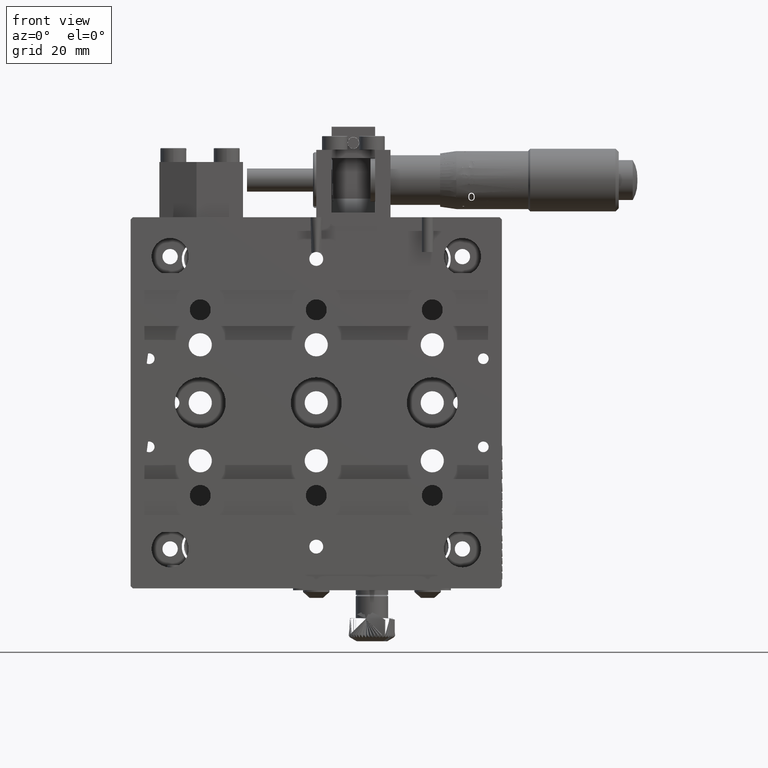
[diagram: clean part render]
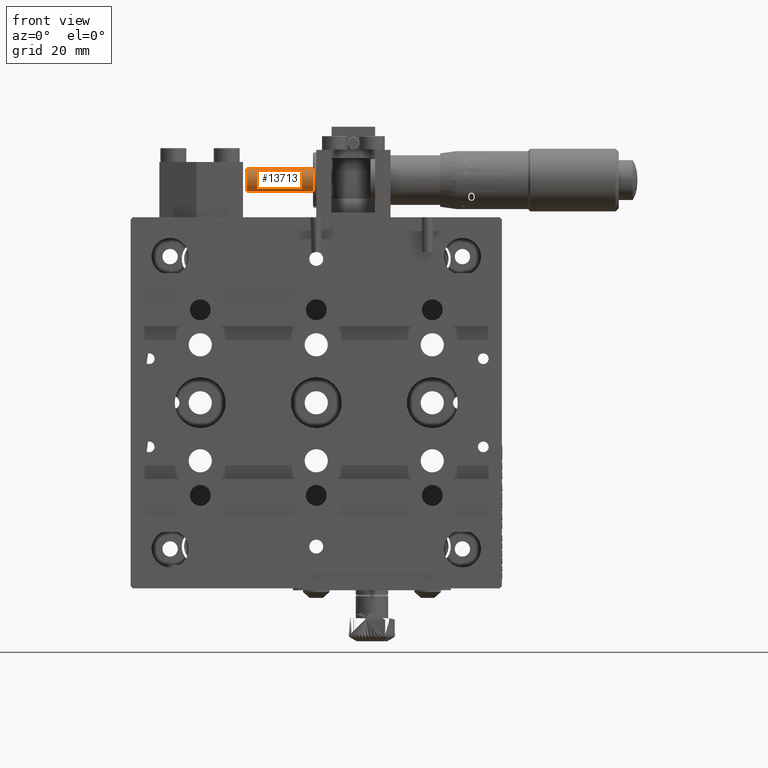
[diagram: same view with one face highlighted and labeled with its STEP entity id]
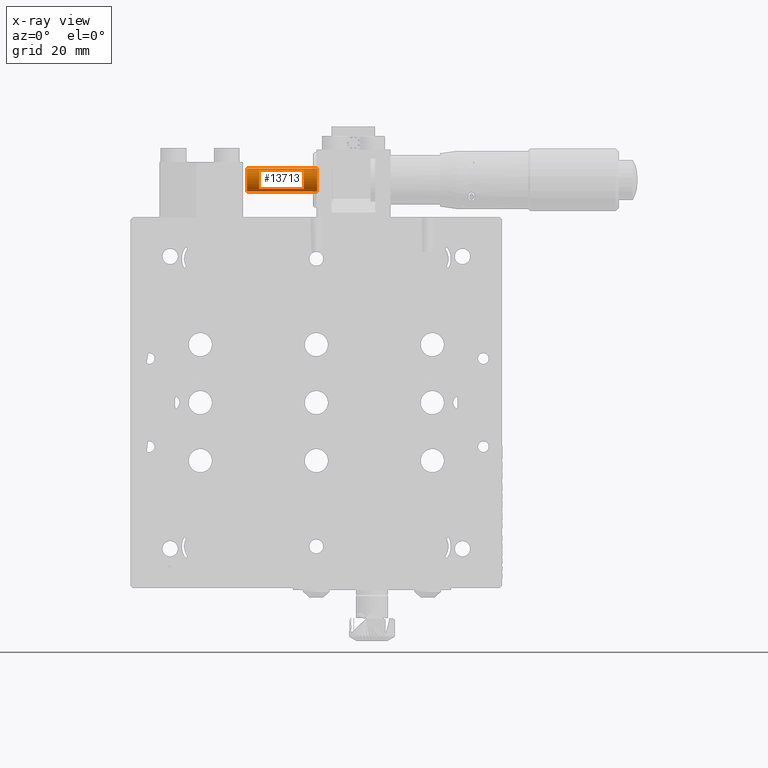
[diagram: x-ray of the same camera — body ghosted, the highlighted face saturated]
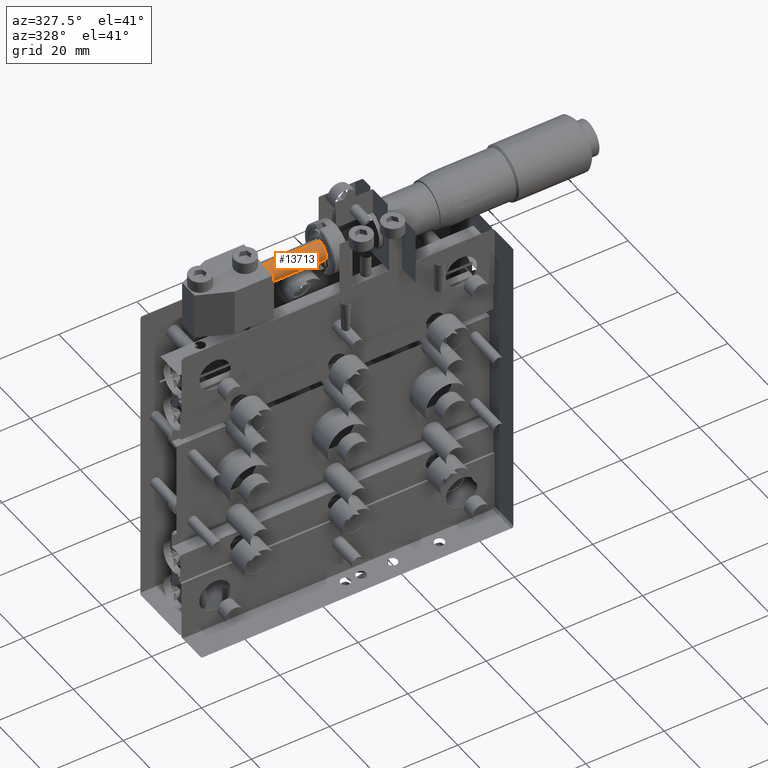
[diagram: same view with one face highlighted and labeled with its STEP entity id]
A machine part, front view. The second image highlights one B-rep face of the part: STEP entity #13713.
The next image is the same camera in x-ray: the body ghosted, the highlighted face saturated — about 0% of this face is hidden behind the body in this view.
A second angle (auxiliary view) of the same face is appended — the face is thin or edge-on in the first view.
In plain terms, the highlighted cylindrical surface (edge-blend (fillet) strip) has radius 2.5 mm, axis along (1, 0, 0).
Its self-contained STEP definition (entity closure, byte-faithful):
#3914 = CARTESIAN_POINT ( 'NONE',  ( -14.92249899919919700, 14.49999999999999800, 45.49999999999998600 ) ) ;
#5645 = AXIS2_PLACEMENT_3D ( 'NONE', #59848, #59776, #59717 ) ;
#6217 = ORIENTED_EDGE ( 'NONE', *, *, #35641, .T. ) ;
#13713 = ADVANCED_FACE ( 'NONE', ( #54920 ), #15814, .T. ) ;
#14540 = AXIS2_PLACEMENT_3D ( 'NONE', #48699, #50833, #49674 ) ;
#15814 = CYLINDRICAL_SURFACE ( 'NONE', #14540, 2.500000000000002200 ) ;
#17636 = VERTEX_POINT ( 'NONE', #3914 ) ;
#18343 = VECTOR ( 'NONE', #28949, 1000.000000000000000 ) ;
#18344 = ORIENTED_EDGE ( 'NONE', *, *, #36772, .T. ) ;
#22136 = CIRCLE ( 'NONE', #43068, 2.500000000000002200 ) ;
#26431 = CARTESIAN_POINT ( 'NONE',  ( 0.2000000000000022600, 14.49999999999999800, 45.49999999999998600 ) ) ;
#27711 = VERTEX_POINT ( 'NONE', #39879 ) ;
#28949 = DIRECTION ( 'NONE',  ( 1.000000000000000000, 0.0000000000000000000, 0.0000000000000000000 ) ) ;
#29158 = DIRECTION ( 'NONE',  ( 1.000000000000000000, 0.0000000000000000000, 0.0000000000000000000 ) ) ;
#29461 = CARTESIAN_POINT ( 'NONE',  ( -18.80000000000000100, 14.49999999999999800, 45.49999999999998600 ) ) ;
#30266 = CARTESIAN_POINT ( 'NONE',  ( -18.80000000000000100, 14.49999999999999800, 50.49999999999998600 ) ) ;
#34132 = EDGE_CURVE ( 'NONE', #27711, #38789, #43247, .T. ) ;
#34626 = CARTESIAN_POINT ( 'NONE',  ( 0.2000000000000022600, 14.49999999999999800, 50.49999999999998600 ) ) ;
#35641 = EDGE_CURVE ( 'NONE', #17636, #48937, #46107, .T. ) ;
#36578 = EDGE_CURVE ( 'NONE', #27711, #17636, #39982, .T. ) ;
#36772 = EDGE_CURVE ( 'NONE', #48937, #38789, #22136, .T. ) ;
#38789 = VERTEX_POINT ( 'NONE', #34626 ) ;
#39879 = CARTESIAN_POINT ( 'NONE',  ( -14.92249899919919700, 14.49999999999999800, 50.49999999999998600 ) ) ;
#39982 = CIRCLE ( 'NONE', #5645, 2.500000000000002200 ) ;
#43068 = AXIS2_PLACEMENT_3D ( 'NONE', #54357, #54348, #54291 ) ;
#43247 = LINE ( 'NONE', #30266, #57500 ) ;
#46107 = LINE ( 'NONE', #29461, #18343 ) ;
#48699 = CARTESIAN_POINT ( 'NONE',  ( -18.80000000000000100, 14.49999999999999800, 47.99999999999998600 ) ) ;
#48937 = VERTEX_POINT ( 'NONE', #26431 ) ;
#49674 = DIRECTION ( 'NONE',  ( 0.0000000000000000000, 0.0000000000000000000, -1.000000000000000000 ) ) ;
#50833 = DIRECTION ( 'NONE',  ( 1.000000000000000000, 0.0000000000000000000, 0.0000000000000000000 ) ) ;
#51610 = ORIENTED_EDGE ( 'NONE', *, *, #34132, .F. ) ;
#51889 = EDGE_LOOP ( 'NONE', ( #51610, #59288, #6217, #18344 ) ) ;
#54291 = DIRECTION ( 'NONE',  ( 0.0000000000000000000, 0.0000000000000000000, -1.000000000000000000 ) ) ;
#54348 = DIRECTION ( 'NONE',  ( -1.000000000000000000, -0.0000000000000000000, -0.0000000000000000000 ) ) ;
#54357 = CARTESIAN_POINT ( 'NONE',  ( 0.2000000000000022600, 14.49999999999999800, 47.99999999999998600 ) ) ;
#54920 = FACE_OUTER_BOUND ( 'NONE', #51889, .T. ) ;
#57500 = VECTOR ( 'NONE', #29158, 1000.000000000000000 ) ;
#59288 = ORIENTED_EDGE ( 'NONE', *, *, #36578, .T. ) ;
#59717 = DIRECTION ( 'NONE',  ( 0.0000000000000000000, 0.0000000000000000000, -1.000000000000000000 ) ) ;
#59776 = DIRECTION ( 'NONE',  ( 1.000000000000000000, 0.0000000000000000000, 0.0000000000000000000 ) ) ;
#59848 = CARTESIAN_POINT ( 'NONE',  ( -14.92249899919919700, 14.49999999999999800, 47.99999999999998600 ) ) ;